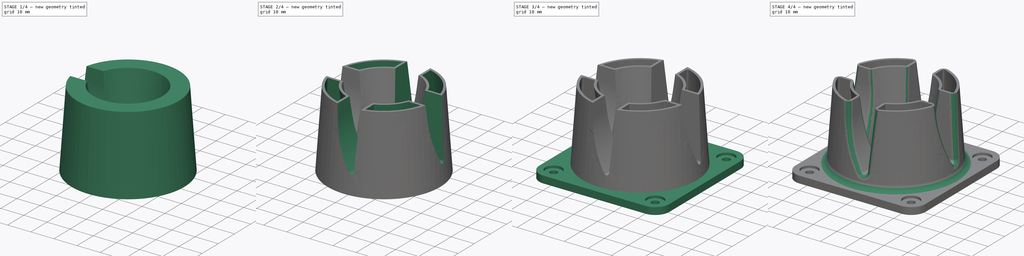
[diagram: build sequence overview — one tinted view per stage of 4, left to right]
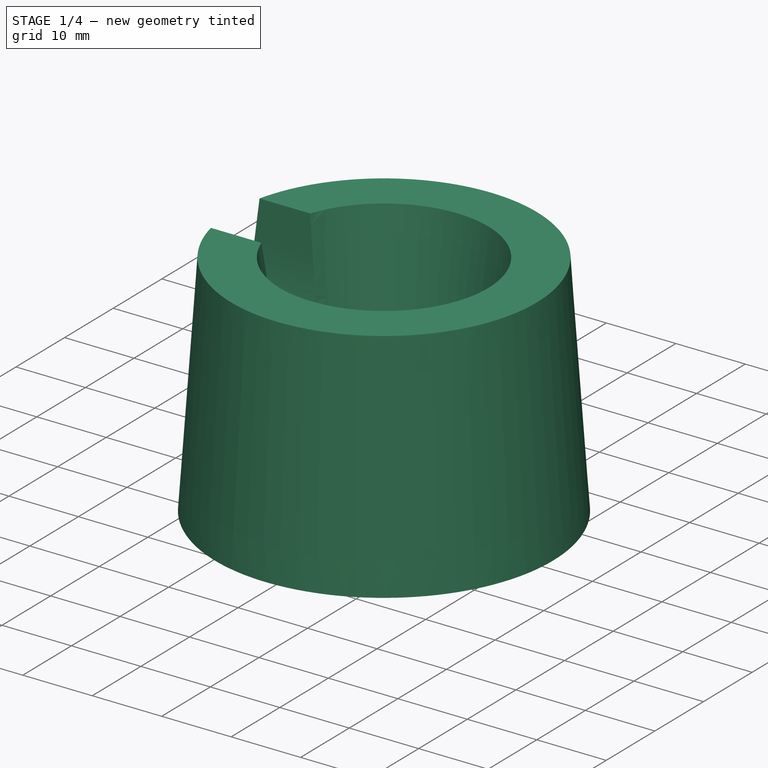
[diagram: stage 1 of 4 — iso view after this stage's code; geometry added in this stage tinted green]
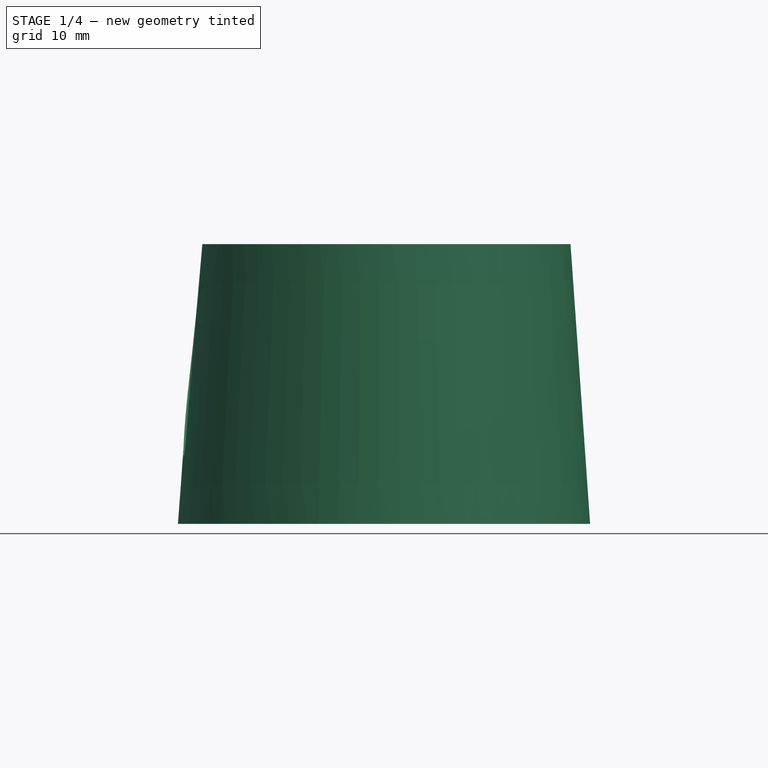
[diagram: stage 1 of 4 — front view after this stage's code; geometry added in this stage tinted green]
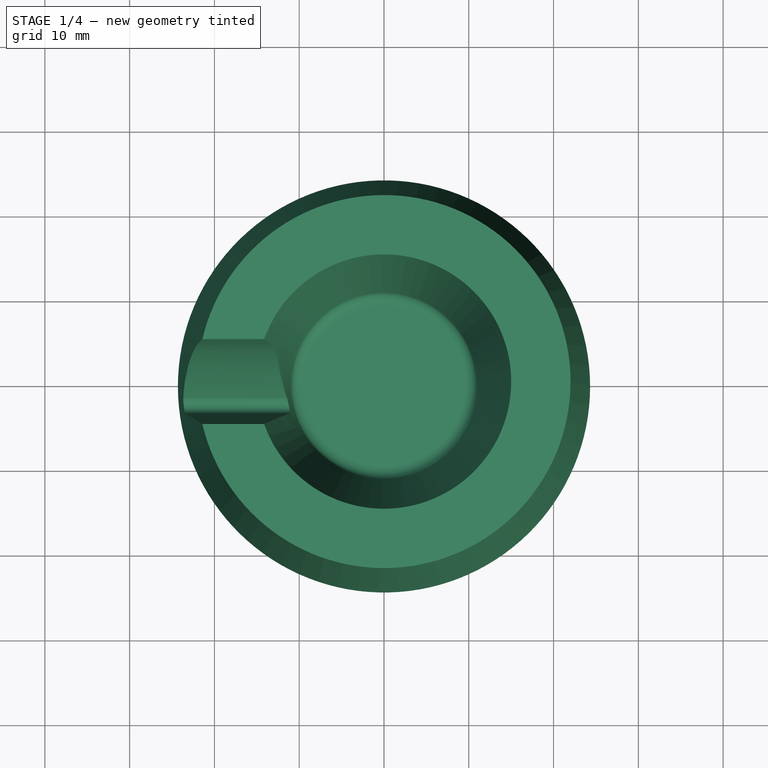
[diagram: stage 1 of 4 — top view after this stage's code; geometry added in this stage tinted green]
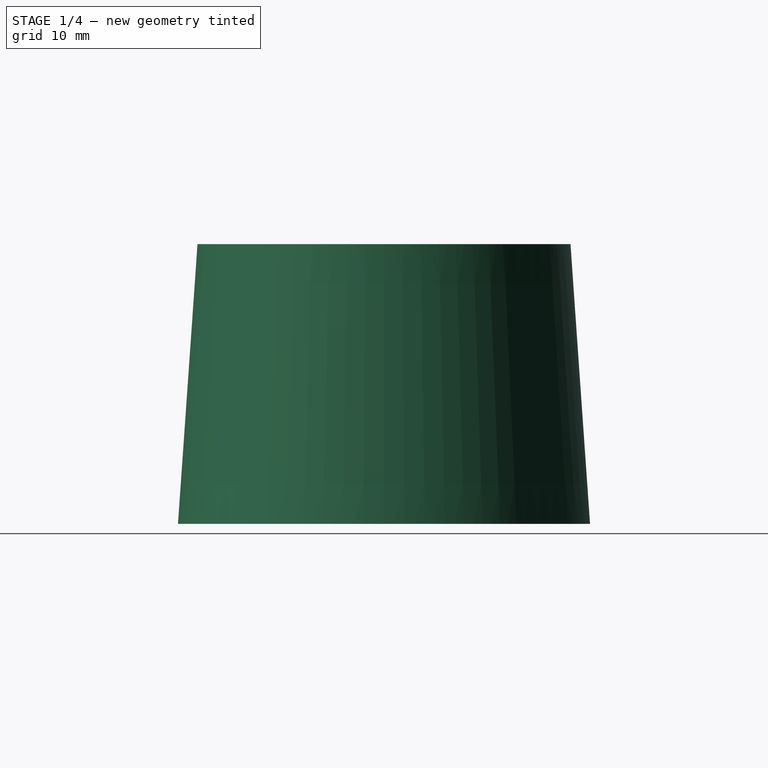
[diagram: stage 1 of 4 — right view after this stage's code; geometry added in this stage tinted green]
FCSTD DOCUMENT  (FreeCAD 1.1R41905 (Git))
Label: 25-SPO-20-Fan_Shroud
License: Creative Commons Attribution-NonCommercial-ShareAlike 4.0
LicenseURL: https://creativecommons.org/licenses/by-nc-sa/4.0/
objects: Sketcher::SketchObject×3, PartDesign::Fillet×3, App::Point×1, PartDesign::Revolution×1, PartDesign::Pocket×1, PartDesign::PolarPattern×1, PartDesign::Thickness×1, PartDesign::Pad×1, PartDesign::Hole×1, PartDesign::Body×1
note: 33 computed .brp shape members not serialized (recipe doc carries the construction recipe); baked Part::Feature solids carry a one-line shape summary decoded from their .brp

FEATURE [App::Point] Origin001  label="Origine"
  Role = Origin
FEATURE [Sketcher::SketchObject] Sketch
  ArcFitTolerance = 1e-06
  AttachmentSupport = -> [Origin]
  ExternalTypes = [0]
  FullyConstrained = true
  MakeInternals = false
  MapMode = 5
  Placement = pos=(0,0,0) rot=(1,0,0;1.5708rad)
  sketch-geometry (7):
    g0: LineSegment StartX=0 StartY=3 StartZ=0 EndX=9.47984 EndY=3 EndZ=0
    g1: ArcOfCircle CenterX=9.47984 CenterY=4.5 CenterZ=0 NormalX=0 NormalY=0 NormalZ=1 AngleXU=0 Radius=1.5 StartAngle=4.71239 EndAngle=6.14356
    g2: LineSegment StartX=10.9652 StartY=4.29124 StartZ=0 EndX=15 EndY=33 EndZ=0
    g3: LineSegment StartX=15 StartY=33 StartZ=0 EndX=22 EndY=33 EndZ=0
    g4: LineSegment StartX=22 StartY=33 StartZ=0 EndX=24.3076 EndY=0 EndZ=0
    g5: LineSegment StartX=0 StartY=0 StartZ=0 EndX=0 EndY=3 EndZ=0
    g6: LineSegment StartX=0 StartY=0 StartZ=0 EndX=24.3076 EndY=0 EndZ=0
  constraints (19):
    c: PointOnObject(g0,g-2)
    c: Horizontal(g0)
    c: Tangent(g0,g1) = -1.5708
    c: Tangent(g1,g2) = -1.5708
    c: Coincident(g2,g3)
    c: Horizontal(g3)
    c: Coincident(g3,g4)
    c: Coincident(g0,g5)
    c: Distance(g3,g-2) = 22
    c: Distance(g2,g-2) = 15
    c: Distance(g3,g-1) = 33
    c: Angle(g-2,g4) = 0.0698132
    c: Angle(g2,g-2) = 0.139626
    c: Radius(g1) = 1.5
    c: PointOnObject(g4,g-1)
    c: Coincident(g6,g4)
    c: Coincident(g5,g-1)
    c: DistanceY(g5,g5) = 3
    c: Coincident(g6,g5)
FEATURE [PartDesign::Revolution] Revolution
  Angle = 360
  Angle2 = 60
  Axis = (0,2e-16,1)
  Base = (0,0,0)
  Profile = -> Sketch
  ReferenceAxis = -> Sketch [V_Axis]
  Refine = true
  Reversed = true
  Suppressed = false
  Type = 0
FEATURE [Sketcher::SketchObject] Sketch002
  ArcFitTolerance = 1e-06
  AttachmentSupport = -> [Origin]
  ExternalTypes = [0]
  FullyConstrained = true
  MakeInternals = false
  MapMode = 5
  Placement = pos=(0,0,0) rot=(0.57735,0.57735,0.57735;2.0944rad)
  sketch-geometry (6):
    g0: LineSegment StartX=-5 StartY=33 StartZ=0 EndX=-3.31688 EndY=8.93024 EndZ=0
    g1: ArcOfCircle CenterX=-2.31931 CenterY=9 CenterZ=0 NormalX=0 NormalY=0 NormalZ=1 AngleXU=0 Radius=1 StartAngle=3.21141 EndAngle=5.73368
    g2: ArcOfCircle CenterX=-37.2835 CenterY=30.4128 CenterZ=0 NormalX=0 NormalY=0 NormalZ=1 AngleXU=0 Radius=42 StartAngle=5.73368 EndAngle=6.21337
    g3: LineSegment StartX=4.61421 StartY=27.483 StartZ=0 EndX=5 EndY=33 EndZ=0
    g4: LineSegment StartX=5 StartY=33 StartZ=0 EndX=-5 EndY=33 EndZ=0
    g5: LineSegment [constr] StartX=-2.31931 StartY=8 StartZ=0 EndX=0 EndY=8 EndZ=0
  constraints (16):
    c: PointOnObject(g0,g-3)
    c: Tangent(g0,g1) = -1.5708
    c: Tangent(g1,g2) = -1.5708
    c: Tangent(g2,g3) = -1.5708
    c: Coincident(g3,g4)
    c: Coincident(g4,g0)
    c: Radius(g2) = 42
    c: Angle(g3,g-2) = 0.0698132
    c: Angle(g-2,g0) = 0.0698132
    c: Radius(g1) = 1
    c: Symmetric(g3,g0,g-2)
    c: Tangent(g5,g1) = -1.5708
    c: PointOnObject(g5,g-2)
    c: Horizontal(g5)
    c: Distance(g5,g-3) = 25
    c: DistanceX(g4,g4) = 10
FEATURE [PartDesign::Pocket] Pocket
  BaseFeature = -> Revolution
  Direction = (-1,0,0)
  Length = 5
  Length2 = 5
  Profile = -> Sketch002
  ReferenceAxis = -> Sketch002 [N_Axis]
  Refine = true
  Suppressed = false
  Type = 1
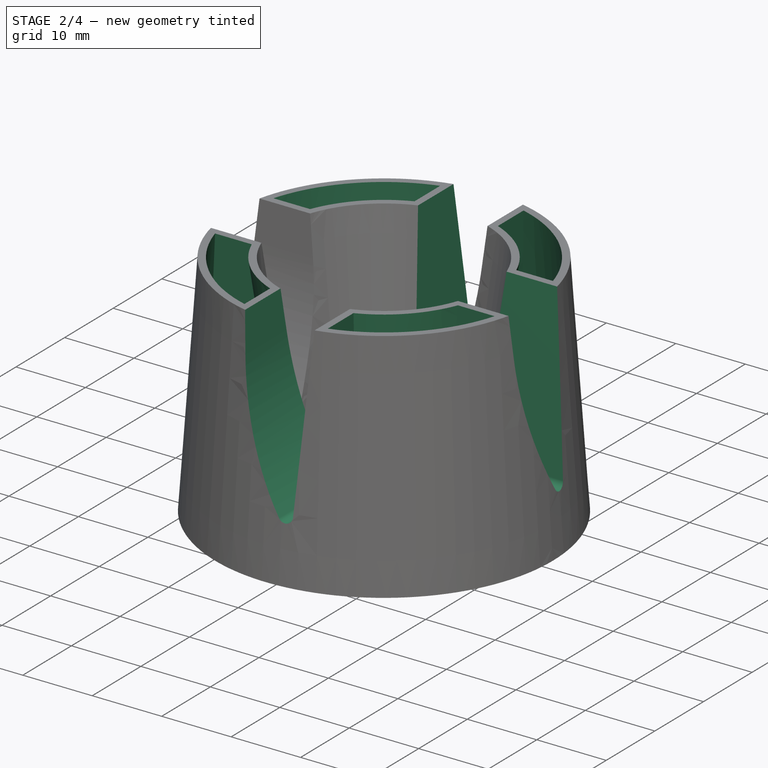
[diagram: stage 2 of 4 — iso view after this stage's code; geometry added in this stage tinted green]
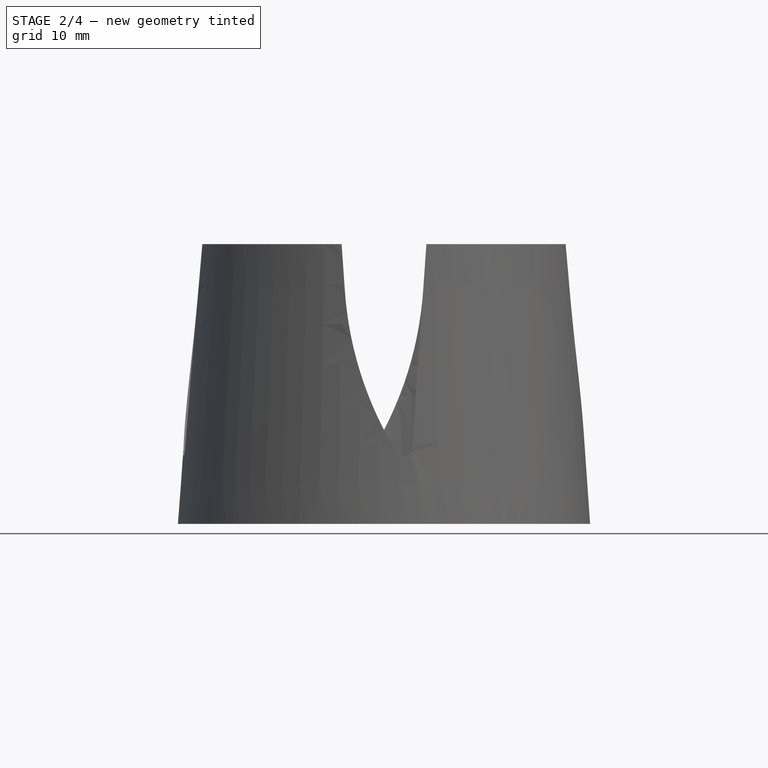
[diagram: stage 2 of 4 — front view after this stage's code; geometry added in this stage tinted green]
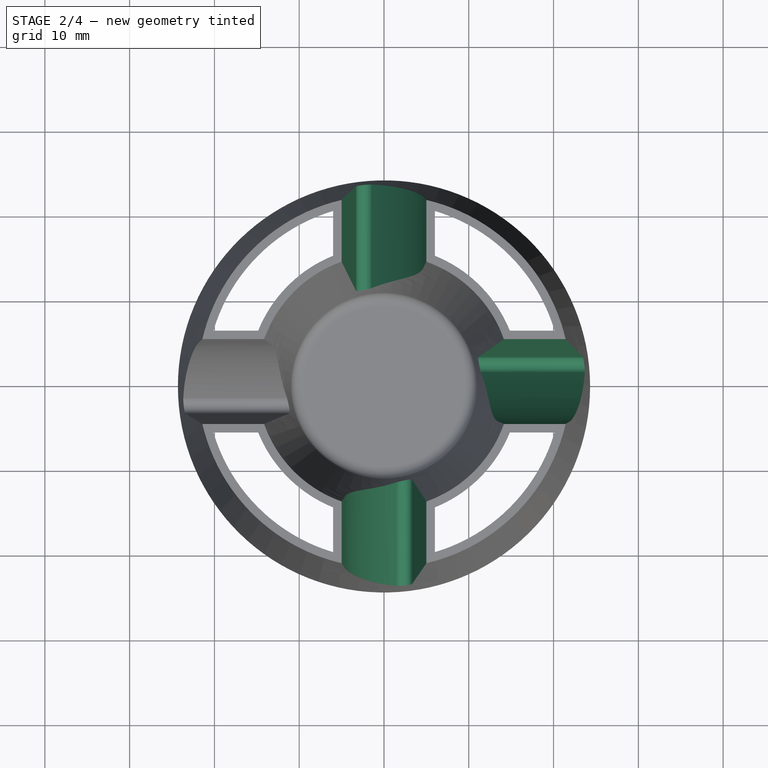
[diagram: stage 2 of 4 — top view after this stage's code; geometry added in this stage tinted green]
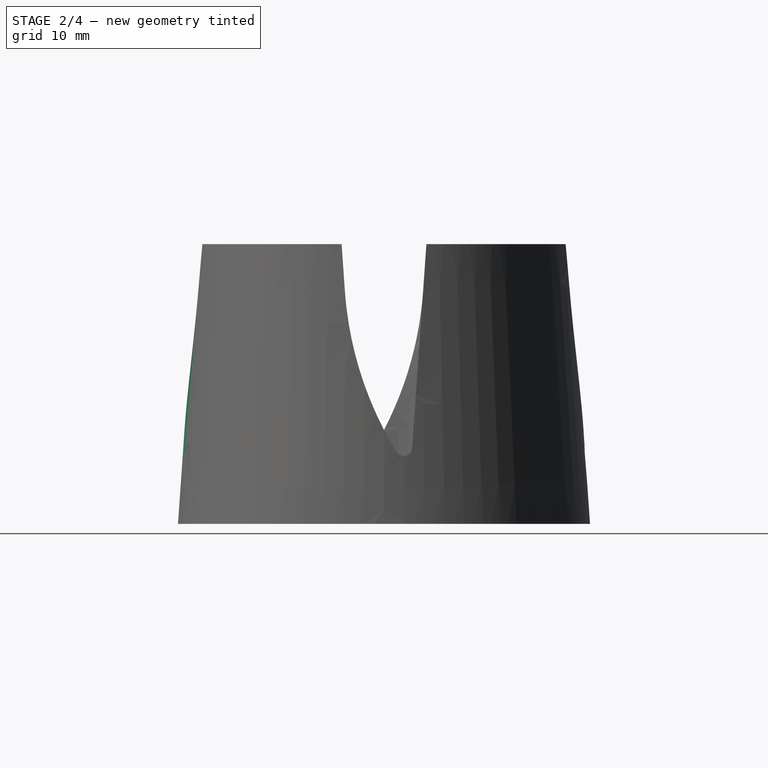
[diagram: stage 2 of 4 — right view after this stage's code; geometry added in this stage tinted green]
FEATURE [PartDesign::PolarPattern] PolarPattern
  Angle = 360
  Axis = -> Z_Axis
  BaseFeature = -> Pocket
  Mode = 0
  Occurrences = 4
  Offset = 120
  Originals = -> [Pocket]
  Refine = true
  Suppressed = false
  TransformMode = 0
FEATURE [PartDesign::Thickness] Thickness
  Base = -> PolarPattern [Face11,Face16,Face21,Face6,Face25]
  BaseFeature = -> PolarPattern
  Intersection = false
  Join = 0
  Mode = 0
  Refine = true
  Reversed = true
  SupportTransform = false
  Suppressed = false
  Value = 1
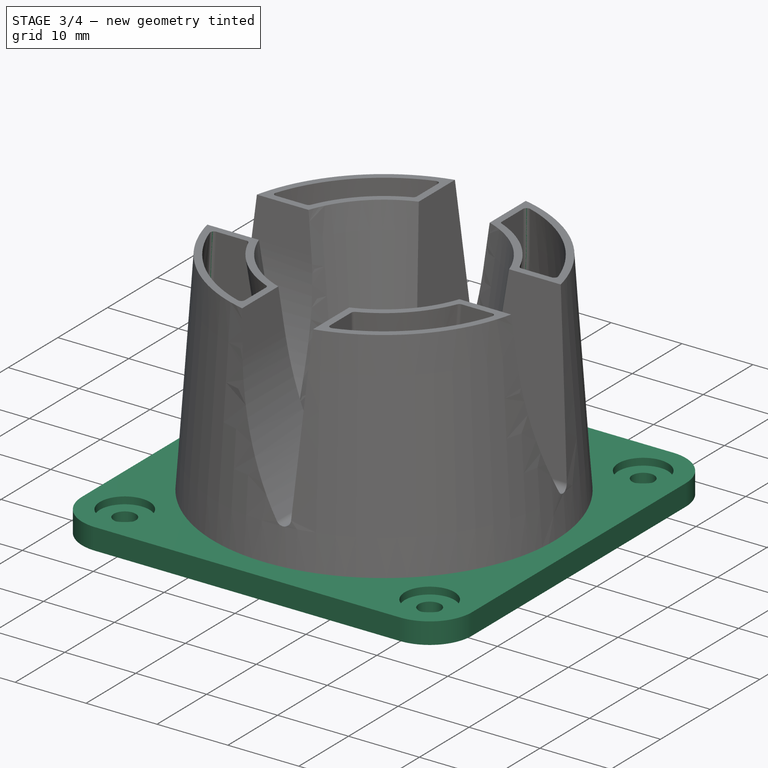
[diagram: stage 3 of 4 — iso view after this stage's code; geometry added in this stage tinted green]
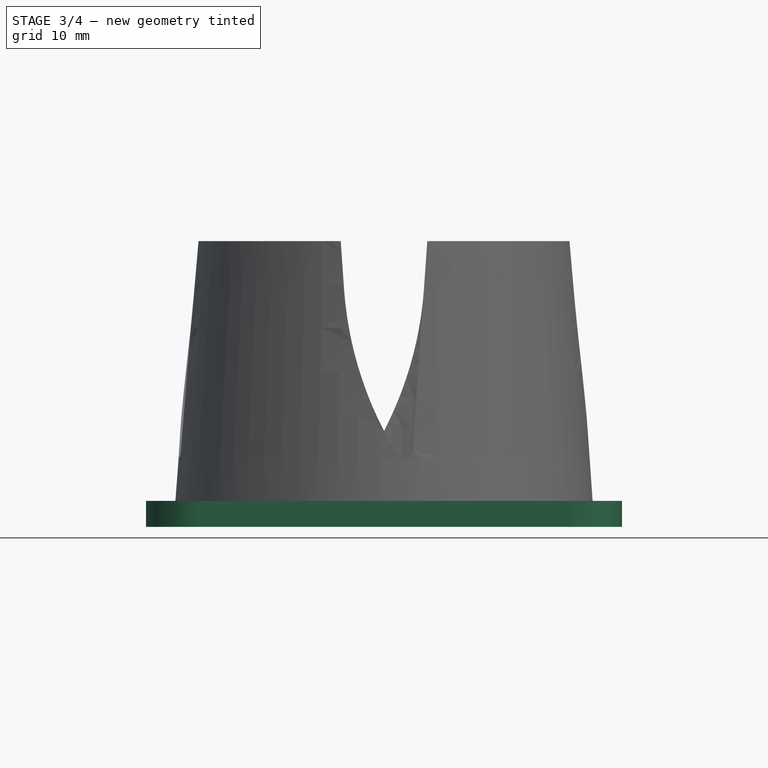
[diagram: stage 3 of 4 — front view after this stage's code; geometry added in this stage tinted green]
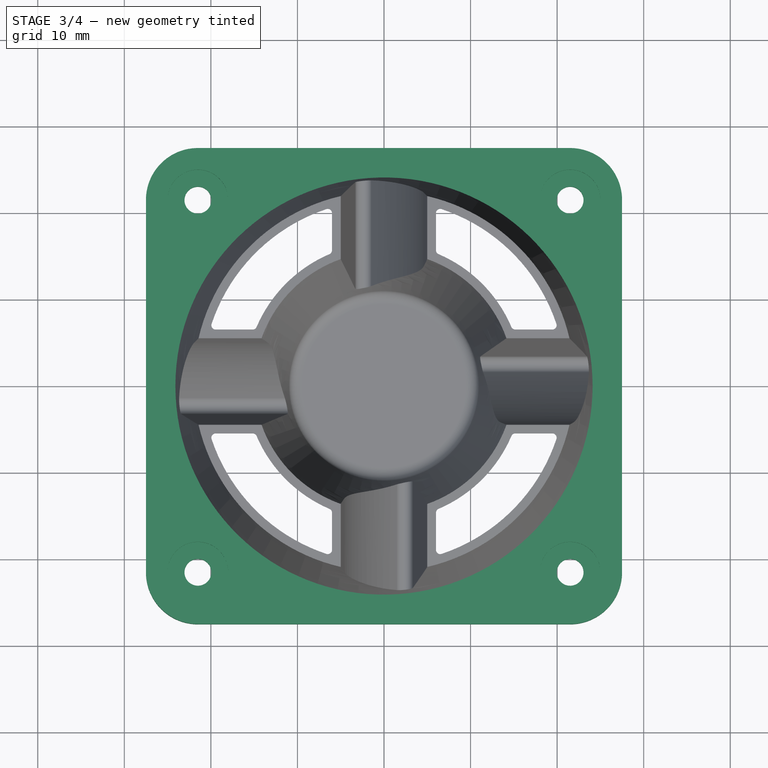
[diagram: stage 3 of 4 — top view after this stage's code; geometry added in this stage tinted green]
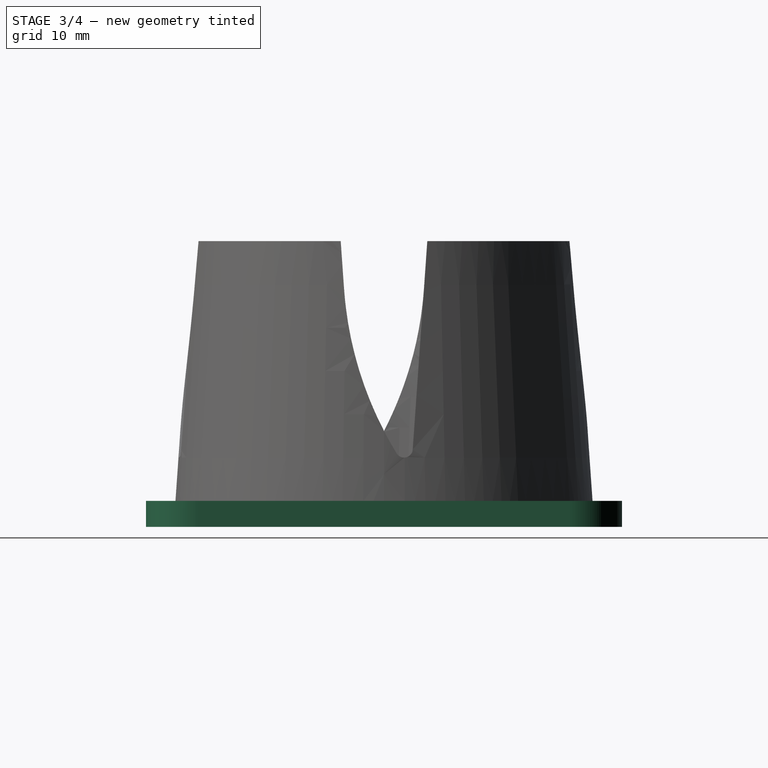
[diagram: stage 3 of 4 — right view after this stage's code; geometry added in this stage tinted green]
FEATURE [Sketcher::SketchObject] Sketch003
  ArcFitTolerance = 1e-06
  AttachmentSupport = -> [Origin]
  ExternalGeometry = -> [Thickness]
  ExternalTypes = [0]
  FullyConstrained = true
  MakeInternals = false
  MapMode = 5
  sketch-geometry (10):
    g0: LineSegment StartX=-27.5 StartY=21.5 StartZ=0 EndX=-27.5 EndY=-21.5 EndZ=0
    g1: LineSegment StartX=-21.5 StartY=-27.5 StartZ=0 EndX=21.5 EndY=-27.5 EndZ=0
    g2: LineSegment StartX=27.5 StartY=-21.5 StartZ=0 EndX=27.5 EndY=21.5 EndZ=0
    g3: LineSegment StartX=21.5 StartY=27.5 StartZ=0 EndX=-21.5 EndY=27.5 EndZ=0
    g4: ArcOfCircle CenterX=-21.5 CenterY=21.5 CenterZ=0 NormalX=0 NormalY=0 NormalZ=1 AngleXU=0 Radius=6 StartAngle=1.5708 EndAngle=3.14159
    g5: ArcOfCircle CenterX=-21.5 CenterY=-21.5 CenterZ=0 NormalX=0 NormalY=0 NormalZ=1 AngleXU=0 Radius=6 StartAngle=3.14159 EndAngle=4.71239
    g6: ArcOfCircle CenterX=21.5 CenterY=-21.5 CenterZ=0 NormalX=0 NormalY=0 NormalZ=1 AngleXU=0 Radius=6 StartAngle=4.71239 EndAngle=6.28319
    g7: ArcOfCircle CenterX=21.5 CenterY=21.5 CenterZ=0 NormalX=0 NormalY=0 NormalZ=1 AngleXU=0 Radius=6 StartAngle=0 EndAngle=1.5708
    g8: GeomPoint [constr] X=-27.5 Y=27.5 Z=0
    g9: GeomPoint [constr] X=27.5 Y=-27.5 Z=0
  constraints (23):
    c: Tangent(g0,g4) = -1.5708
    c: Tangent(g0,g5) = -1.5708
    c: Tangent(g1,g5) = -1.5708
    c: Tangent(g1,g6) = -1.5708
    c: Tangent(g2,g6) = -1.5708
    c: Tangent(g2,g7) = -1.5708
    c: Tangent(g3,g7) = -1.5708
    c: Tangent(g3,g4) = -1.5708
    c: Vertical(g0)
    c: Vertical(g2)
    c: Horizontal(g1)
    c: Horizontal(g3)
    c: Equal(g4,g5)
    c: Equal(g5,g6)
    c: Equal(g6,g7)
    c: PointOnObject(g8,g0)
    c: PointOnObject(g8,g3)
    c: PointOnObject(g9,g1)
    c: PointOnObject(g9,g2)
    c: Radius(g5) = 6
    c: Symmetric(g4,g6,g-1)
    c: Distance(g0,g2) = 55
    c: Equal(g3,g2)
FEATURE [PartDesign::Pad] Pad
  BaseFeature = -> Thickness
  Direction = (0,0,1)
  Length = 3
  Length2 = 10
  Profile = -> Sketch003
  ReferenceAxis = -> Sketch003 [N_Axis]
  Refine = true
  Suppressed = false
  Type = 0
FEATURE [PartDesign::Hole] Hole
  BaseFeature = -> Pad
  BaseProfileType = 7
  CustomThreadClearance = 0
  Depth = 170.675
  DepthType = 1
  Diameter = 3.1
  DrillForDepth = false
  DrillPoint = 1
  DrillPointAngle = 118
  HoleCutCountersinkAngle = 90
  HoleCutCustomValues = false
  HoleCutDepth = 1
  HoleCutDiameter = 7
  HoleCutType = 1
  ModelThread = false
  Profile = -> Pad [Edge139,Edge138,Edge142,Edge143]
  Refine = true
  Suppressed = false
  Tapered = false
  TaperedAngle = 90
  ThreadClass = 0
  ThreadDepth = 170.675
  ThreadDepthType = 0
  ThreadDiameter = 3.1
  ThreadDirection = 0
  ThreadFit = 0
  ThreadSize = 0
  ThreadType = 0
  Threaded = false
  UseCustomThreadClearance = false
FEATURE [PartDesign::Fillet] Fillet
  Base = -> Hole [Edge71,Edge20,Edge10,Edge7,Edge28,Edge15,Edge57,Edge43]
  BaseFeature = -> Hole
  Radius = 0.5
  Refine = true
  SupportTransform = false
  Suppressed = false
  UseAllEdges = false
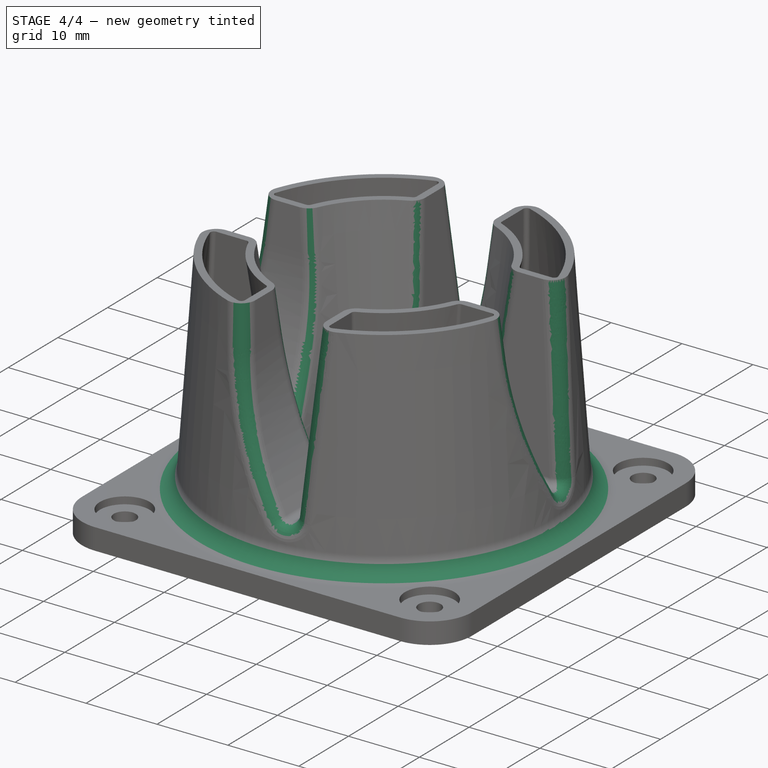
[diagram: stage 4 of 4 — iso view after this stage's code; geometry added in this stage tinted green]
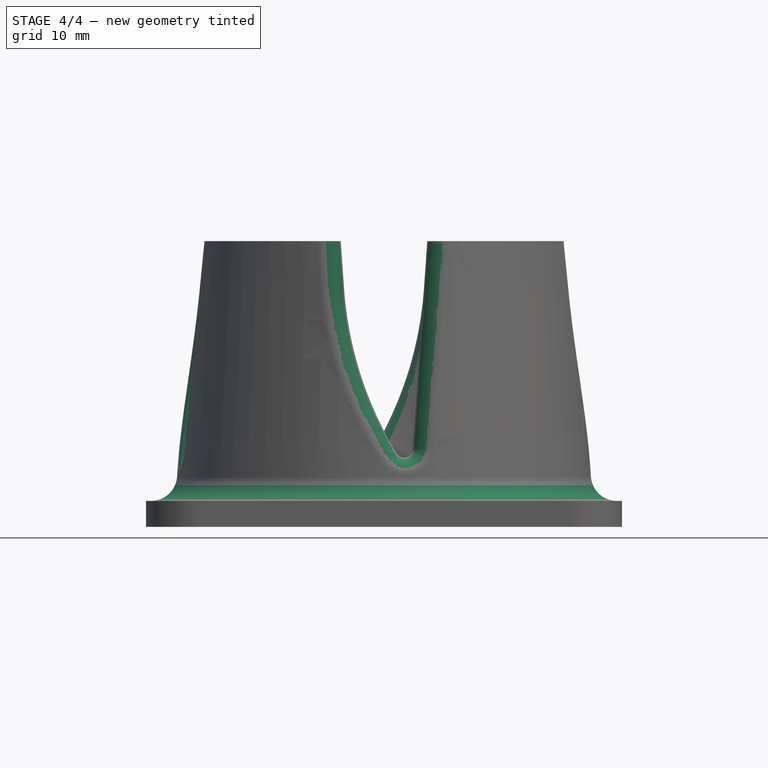
[diagram: stage 4 of 4 — front view after this stage's code; geometry added in this stage tinted green]
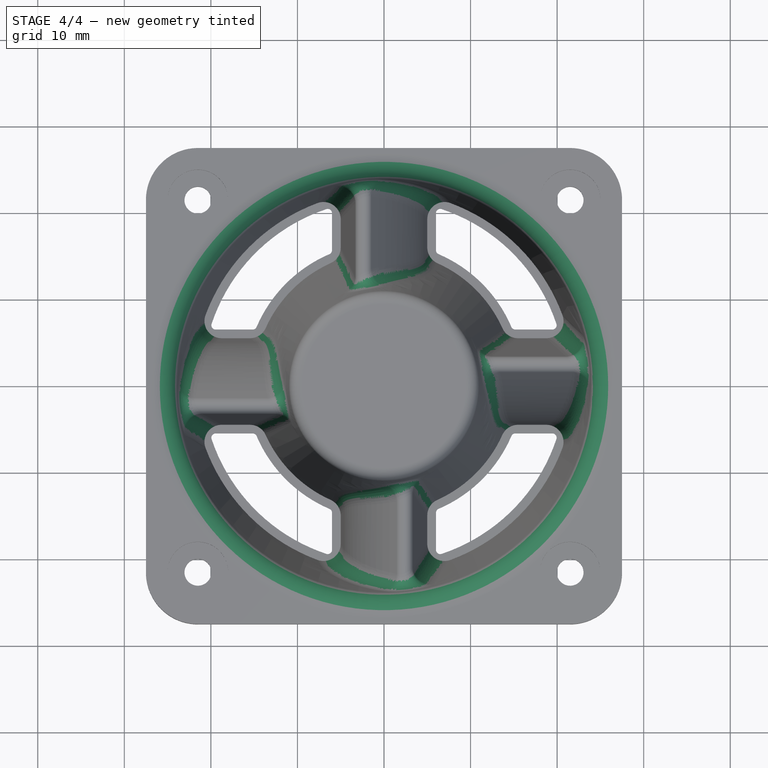
[diagram: stage 4 of 4 — top view after this stage's code; geometry added in this stage tinted green]
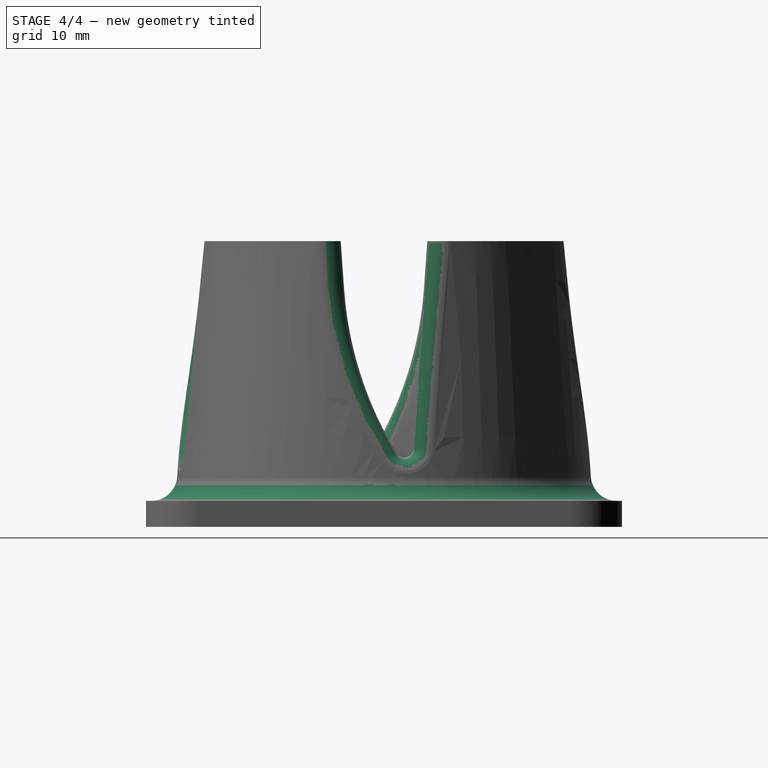
[diagram: stage 4 of 4 — right view after this stage's code; geometry added in this stage tinted green]
FEATURE [PartDesign::Fillet] Fillet001
  Base = -> Fillet [Edge168]
  BaseFeature = -> Fillet
  Radius = 3
  Refine = true
  SupportTransform = false
  Suppressed = false
  UseAllEdges = false
FEATURE [PartDesign::Fillet] Fillet002
  Base = -> Fillet001 [Edge12,Edge60,Edge96,Edge22,Edge66,Edge15,Edge27,Edge3]
  BaseFeature = -> Fillet001
  Radius = 2
  Refine = true
  SupportTransform = false
  Suppressed = false
  UseAllEdges = false
FEATURE [PartDesign::Body] Body  label="Corps"
  AllowCompound = false
  Group = -> [Sketch,Revolution,Sketch002,Pocket,PolarPattern,Thickness,Sketch003,Pad,Hole,Fillet,Fillet001,Fillet002]
  Origin = -> Origin
  Tip = -> Fillet002
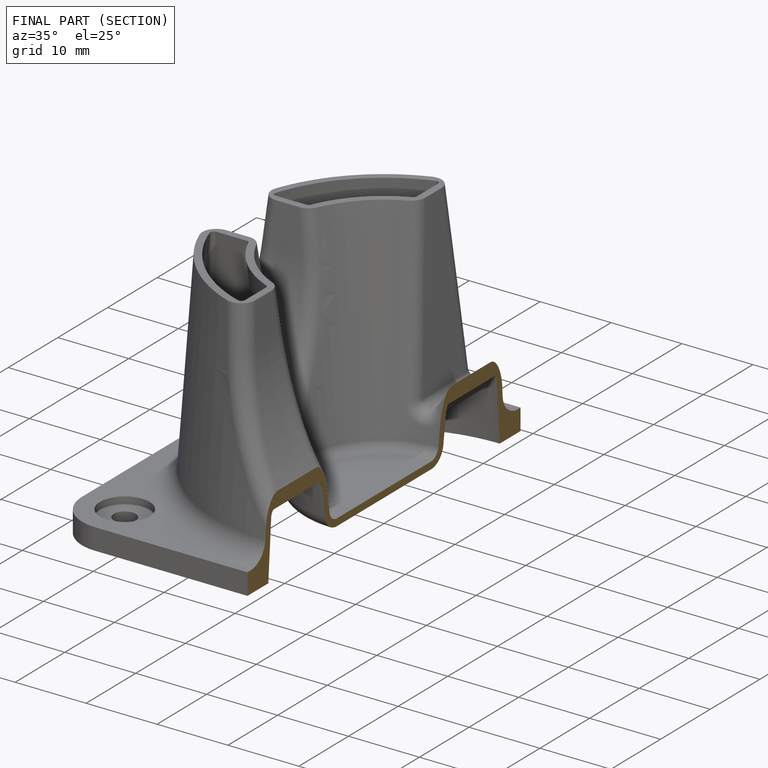
[diagram: finished part — half-section view (interior)]
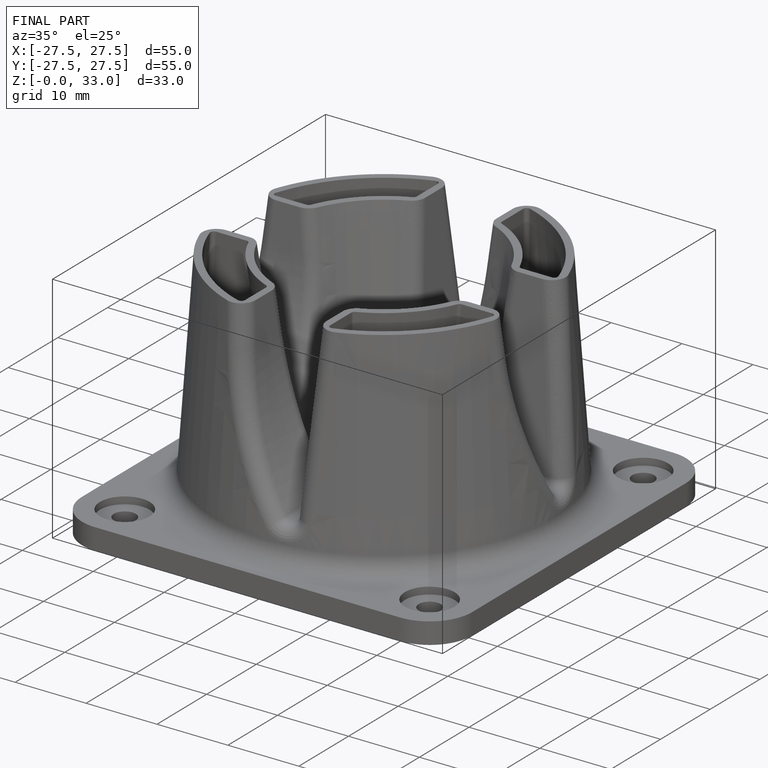
[diagram: finished part — iso view with bounding-box wireframe]
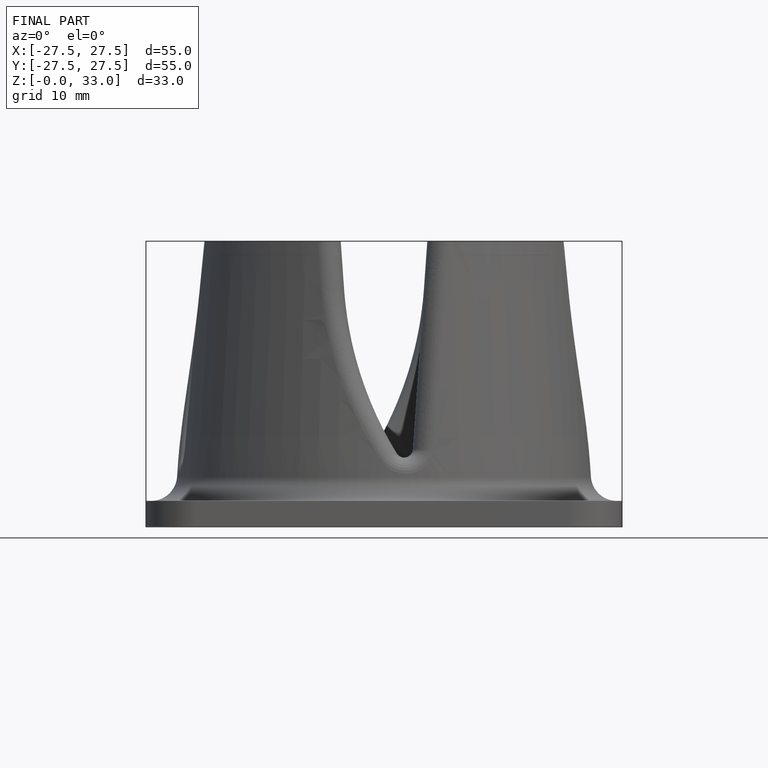
[diagram: finished part — front view with bounding-box wireframe]
